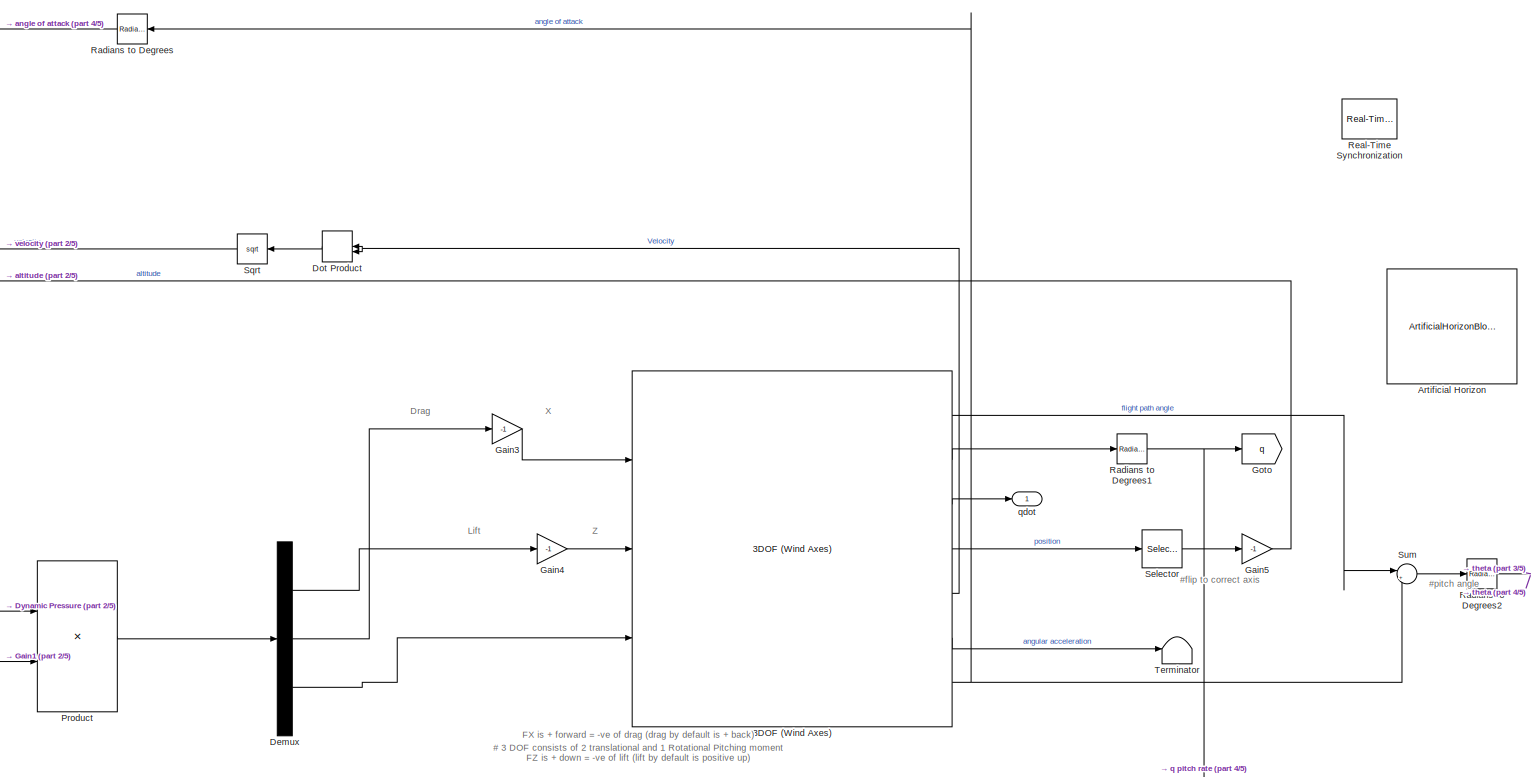
[diagram: root canvas - part 1/5, top right region]
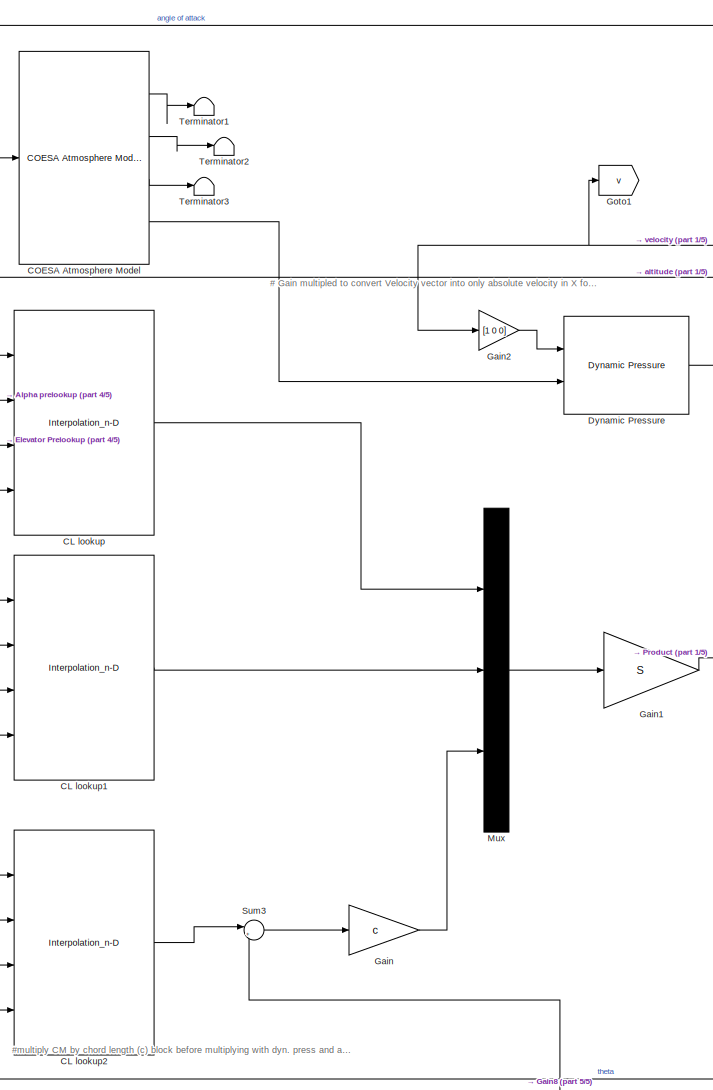
[diagram: root canvas - part 2/5, center side, full height]
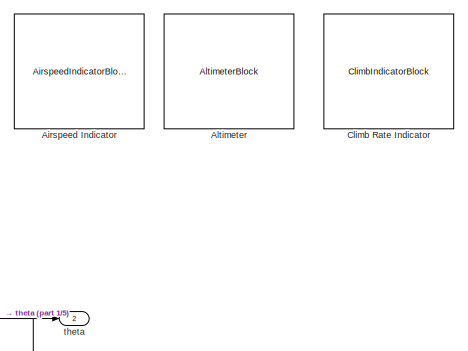
[diagram: root canvas - part 3/5, middle right region]
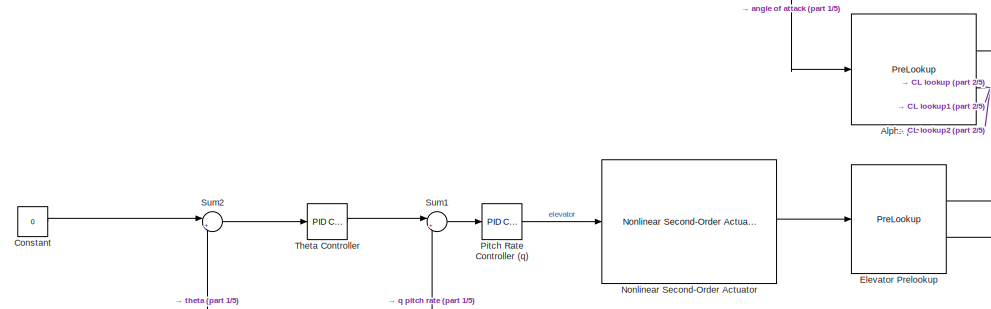
[diagram: root canvas - part 4/5, middle left region]
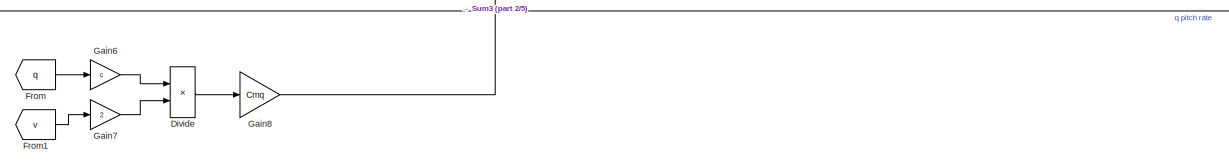
[diagram: root canvas - part 5/5, bottom center region]
MODEL slx_8d6a73c968b9
KIND model
CONFIG AbsTol = auto
CONFIG EnableMultiTasking = off
CONFIG FixedStep = auto
CONFIG MaxStep = auto
CONFIG MinStep = auto
CONFIG RelTol = 1e-3
CONFIG SampleTimeConstraint = Unconstrained
CONFIG Solver = VariableStepAuto
CONFIG SolverName = VariableStepAuto
CONFIG StartTime = 0.0
CONFIG StopTime = 5
BLOCK [Reference] 3DOF (Wind Axes)  REF=aerolib3dof2/3DOF (Wind Axes)
  Ports = [3, 7]
  SourceBlock = aerolib3dof2/3DOF (Wind Axes)
  SourceProductBaseCode = AE
  SourceType = 3DOF Wind EoM
BLOCK [AirspeedIndicatorBlock] Airspeed Indicator
  ScaleMax = 120
  ScaleMin = 0
BLOCK [PreLookup] Alpha prelookup
  BreakpointsData = alpha
  ExtrapMethod = Linear
  InputPortMap = u0
  Ports = [1, 2]
BLOCK [AltimeterBlock] Altimeter
BLOCK [ArtificialHorizonBlock] Artificial Horizon
BLOCK [Interpolation_n-D] CL lookup
  InputPortMap = u0,u1,u2,u3
  IntermediateResultsDataTypeStr = Inherit: Inherit via internal rule
  InternalRulePriority = Speed
  Ports = [4, 1]
  Table = CL
BLOCK [Interpolation_n-D] CL lookup1
  InputPortMap = u0,u1,u2,u3
  IntermediateResultsDataTypeStr = Inherit: Inherit via internal rule
  InternalRulePriority = Speed
  Ports = [4, 1]
  Table = CD
BLOCK [Interpolation_n-D] CL lookup2
  InputPortMap = u0,u1,u2,u3
  IntermediateResultsDataTypeStr = Inherit: Inherit via internal rule
  InternalRulePriority = Speed
  Ports = [4, 1]
  Table = CM
BLOCK [Reference] COESA Atmosphere Model  REF=aerolibatmos2/COESA Atmosphere Model
  Ports = [1, 4]
  SourceBlock = aerolibatmos2/COESA Atmosphere Model
  SourceProductBaseCode = AE
  SourceType = Atmosphere Model
BLOCK [ClimbIndicatorBlock] Climb Rate Indicator
  ScaleMax = 40
BLOCK [Constant] Constant
  Value = 0
BLOCK [Demux] Demux
  Outputs = 3
  Ports = [1, 3]
BLOCK [Product] Divide
  Inputs = */
  Ports = [2, 1]
BLOCK [DotProduct] Dot Product
  OutDataTypeStr = Inherit: Inherit via internal rule
BLOCK [Reference] Dynamic Pressure  REF=aerolibasang/Dynamic Pressure
  Ports = [2, 1]
  SourceBlock = aerolibasang/Dynamic Pressure
  SourceProductBaseCode = AE
  SourceType = Dynamic Pressure
BLOCK [PreLookup] Elevator Prelookup
  BreakpointsData = elevator
  ExtrapMethod = Linear
  InputPortMap = u0
  Ports = [1, 2]
BLOCK [From] From
  GotoTag = q
BLOCK [From] From1
  GotoTag = v
BLOCK [Gain] Gain
  Gain = c
BLOCK [Gain] Gain1
  Gain = S
BLOCK [Gain] Gain2
  Gain = [1 0 0]
BLOCK [Gain] Gain3
  Gain = -1
BLOCK [Gain] Gain4
  Gain = -1
BLOCK [Gain] Gain5
  Gain = -1
BLOCK [Gain] Gain6
  Gain = c
BLOCK [Gain] Gain7
  Gain = 2
BLOCK [Gain] Gain8
  Gain = Cmq
BLOCK [Goto] Goto
  GotoTag = q
BLOCK [Goto] Goto1
  GotoTag = v
BLOCK [Mux] Mux
  DisplayOption = bar
  Inputs = 3
  Ports = [3, 1]
BLOCK [Reference] Nonlinear Second-Order Actuator  REF=aerolibactuator/Nonlinear Second-Order Actuator
  Ports = [1, 1]
  SourceBlock = aerolibactuator/Nonlinear Second-Order Actuator
  SourceProductBaseCode = AE
  SourceType = NonlinearSecondOrderActuator
BLOCK [Reference] Pitch Rate Controller (q)  REF=simulink/Continuous/PID Controller
  Ports = [1, 1]
  SourceBlock = simulink/Continuous/PID Controller
  SourceProductBaseCode = SL
  SourceType = PID 1dof
BLOCK [Product] Product
  Ports = [2, 1]
BLOCK [Reference] Radians to Degrees  REF=simulink_extras/Transformations/Radians
to Degrees
  Ports = [1, 1]
  SourceBlock = simulink_extras/Transformations/Radians\nto Degrees
  SourceProductBaseCode = SL
  SourceType = RadiansToDegrees
BLOCK [Reference] Radians to Degrees1  REF=simulink_extras/Transformations/Radians
to Degrees
  Ports = [1, 1]
  SourceBlock = simulink_extras/Transformations/Radians\nto Degrees
  SourceProductBaseCode = SL
  SourceType = RadiansToDegrees
BLOCK [Reference] Radians to Degrees2  REF=simulink_extras/Transformations/Radians
to Degrees
  Ports = [1, 1]
  SourceBlock = simulink_extras/Transformations/Radians\nto Degrees
  SourceProductBaseCode = SL
  SourceType = RadiansToDegrees
BLOCK [Reference] Real-Time Synchronization  REF=sldrtlib/Real-Time
Synchronization
  Ports = [0, 1]
  SourceBlock = sldrtlib/Real-Time\nSynchronization
  SourceProductBaseCode = WT
  SourceType = Simulink Desktop Real-Time Synchronization
BLOCK [Selector] Selector
  IndexOptions = Index vector (dialog)
  Indices = 2
  InputPortWidth = 2
  OutputSizes = 1
  Ports = [1, 1]
BLOCK [Sqrt] Sqrt
BLOCK [Sum] Sum
  Inputs = |++
  Ports = [2, 1]
BLOCK [Sum] Sum1
  Inputs = |+-
  Ports = [2, 1]
BLOCK [Sum] Sum2
  Inputs = |+-
  Ports = [2, 1]
BLOCK [Sum] Sum3
  Inputs = |++
  Ports = [2, 1]
BLOCK [Terminator] Terminator
BLOCK [Terminator] Terminator1
BLOCK [Terminator] Terminator2
BLOCK [Terminator] Terminator3
BLOCK [Reference] Theta Controller  REF=simulink/Continuous/PID Controller
  Ports = [1, 1]
  SourceBlock = simulink/Continuous/PID Controller
  SourceProductBaseCode = SL
  SourceType = PID 1dof
BLOCK [Outport] qdot
BLOCK [Outport] theta
  Port = 2
ANNOTATION (root): # 3 DOF consists of 2 translational and 1 Rotational Pitching moment FX is + forward = -ve of drag (drag by default is + back) FZ is + down = -ve of lift (lift by default is positive up)
ANNOTATION (root): # Gain multipled to convert Velocity vector into only absolute velocity in X for Dyn Press
ANNOTATION (root): #flip to correct axis
ANNOTATION (root): #multiply CM by chord length (c) block before multiplying with dyn. press and area
ANNOTATION (root): #pitch angle
ANNOTATION (root): Drag
ANNOTATION (root): Lift
ANNOTATION (root): X
ANNOTATION (root): Z
LINE 3DOF (Wind Axes):1 -> Sum:1
LINE 3DOF (Wind Axes):2 -> Radians to Degrees1:1
LINE 3DOF (Wind Axes):3 -> qdot:1
LINE 3DOF (Wind Axes):4 -> Selector:1
NET 3DOF (Wind Axes):5 -> Dot Product:1, Dot Product:2
LINE 3DOF (Wind Axes):6 -> Terminator:1
NET 3DOF (Wind Axes):7 -> Radians to Degrees:1, Sum:2
NET Alpha prelookup:1 -> CL lookup1:1, CL lookup2:1, CL lookup:1
NET Alpha prelookup:2 -> CL lookup1:2, CL lookup2:2, CL lookup:2
LINE CL lookup1:1 -> Mux:2
LINE CL lookup2:1 -> Sum3:1
LINE CL lookup:1 -> Mux:1
LINE COESA Atmosphere Model:1 -> Terminator1:1
LINE COESA Atmosphere Model:2 -> Terminator2:1
LINE COESA Atmosphere Model:3 -> Terminator3:1
LINE COESA Atmosphere Model:4 -> Dynamic Pressure:2
LINE Constant:1 -> Sum2:1
LINE Demux:1 -> Gain4:1
LINE Demux:2 -> Gain3:1
LINE Demux:3 -> 3DOF (Wind Axes):3
LINE Divide:1 -> Gain8:1
LINE Dot Product:1 -> Sqrt:1
LINE Dynamic Pressure:1 -> Product:1
NET Elevator Prelookup:1 -> CL lookup1:3, CL lookup2:3, CL lookup:3
NET Elevator Prelookup:2 -> CL lookup1:4, CL lookup2:4, CL lookup:4
LINE From1:1 -> Gain7:1
LINE From:1 -> Gain6:1
LINE Gain1:1 -> Product:2
LINE Gain2:1 -> Dynamic Pressure:1
LINE Gain3:1 -> 3DOF (Wind Axes):1
LINE Gain4:1 -> 3DOF (Wind Axes):2
LINE Gain5:1 -> COESA Atmosphere Model:1
LINE Gain6:1 -> Divide:1
LINE Gain7:1 -> Divide:2
LINE Gain8:1 -> Sum3:2
LINE Gain:1 -> Mux:3
LINE Mux:1 -> Gain1:1
LINE Nonlinear Second-Order Actuator:1 -> Elevator Prelookup:1
LINE Pitch Rate Controller (q):1 -> Nonlinear Second-Order Actuator:1
LINE Product:1 -> Demux:1
NET Radians to Degrees1:1 -> Goto:1, Sum1:2
NET Radians to Degrees2:1 -> Sum2:2, theta:1
LINE Radians to Degrees:1 -> Alpha prelookup:1
LINE Selector:1 -> Gain5:1
NET Sqrt:1 -> Gain2:1, Goto1:1
LINE Sum1:1 -> Pitch Rate Controller (q):1
LINE Sum2:1 -> Theta Controller:1
LINE Sum3:1 -> Gain:1
LINE Sum:1 -> Radians to Degrees2:1
LINE Theta Controller:1 -> Sum1:1
note: NET lines group one-source signal fan-out (src -> all destinations, sorted); 1:1 wires keep LINE
